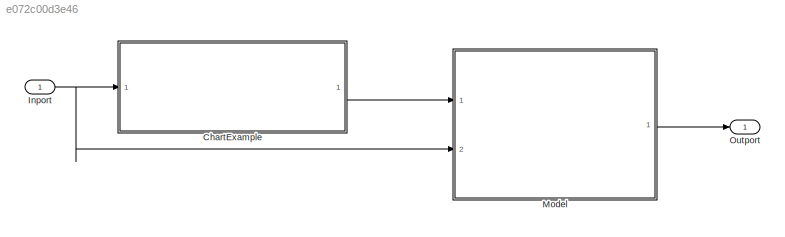
MODEL slx_e072c00d3e46
KIND model
CONFIG AbsTol = auto
CONFIG FixedStep = auto
CONFIG MaxStep = auto
CONFIG MinStep = auto
CONFIG RelTol = 1e-3
CONFIG SampleTimeConstraint = Unconstrained
CONFIG Solver = VariableStepAuto
CONFIG SolverMode = Auto
CONFIG SolverName = VariableStepAuto
CONFIG StartTime = 0.0
CONFIG StopTime = 10.0
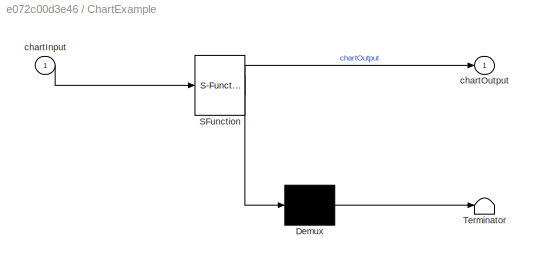
BLOCK [SubSystem] ChartExample
  ErrorFcn = Stateflow.Translate.translate
  PermitHierarchicalResolution = ExplicitOnly
  Ports = [1, 1]
  RequestExecContextInheritance = off
  SFBlockType = Chart
  TreatAsAtomicUnit = on
  Variant = off
BLOCK [Demux] ChartExample/ Demux 
  Outputs = 1
  Ports = [1, 1]
BLOCK [S-Function] ChartExample/ SFunction 
  EnableBusSupport = off
  FunctionName = sf_sfun
  PortCounts = [1 2]
  Ports = [1, 2]
  SFunctionDeploymentMode = off
  Tag = Stateflow S-Function ExampleSystem 3
BLOCK [Terminator] ChartExample/ Terminator 
BLOCK [Inport] ChartExample/chartInput
  IconDisplay = Port number
BLOCK [Outport] ChartExample/chartOutput
  IconDisplay = Port number
BLOCK [Inport] Inport
  IconDisplay = Port number
BLOCK [ModelReference] Model
  CopyOfModelName = ExampleSubsystem.slx
  ModelNameDialog = ExampleSubsystem.slx
  ModelReferenceVersion = 1.1
  Ports = [2, 1]
  Variant = off
BLOCK [Outport] Outport
  IconDisplay = Port number
LINE ChartExample:1 -> Model:1
NET Inport:1 -> ChartExample:1, Model:2
LINE Model:1 -> Outport:1
note: NET lines group one-source signal fan-out (src -> all destinations, sorted); 1:1 wires keep LINE
CHART ChartExample states=2 transitions=2
  STATE_LABEL 'Hello'
  STATE_LABEL 'World'
  STATE_LABEL 'World'
